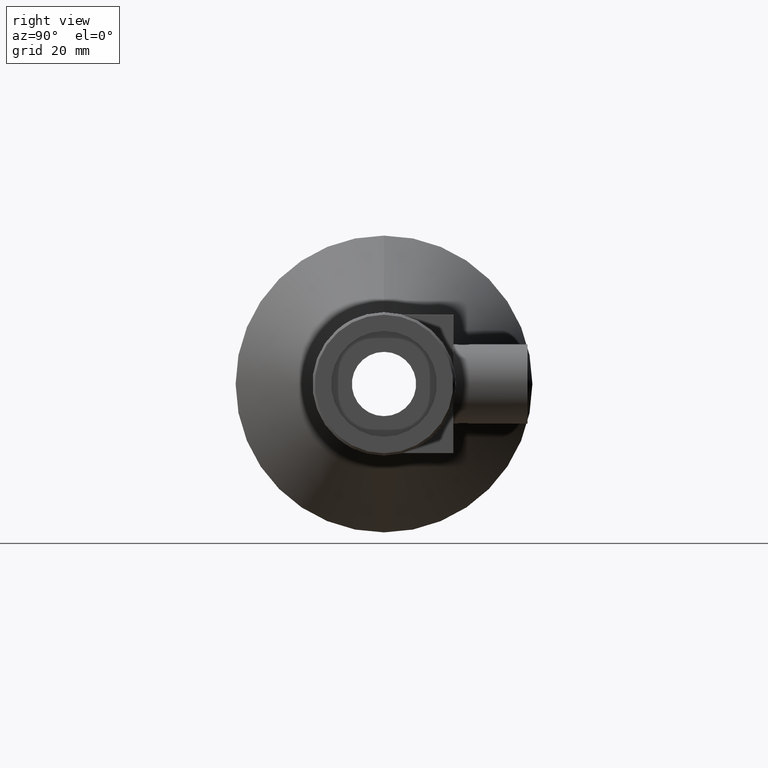
[diagram: clean part render]
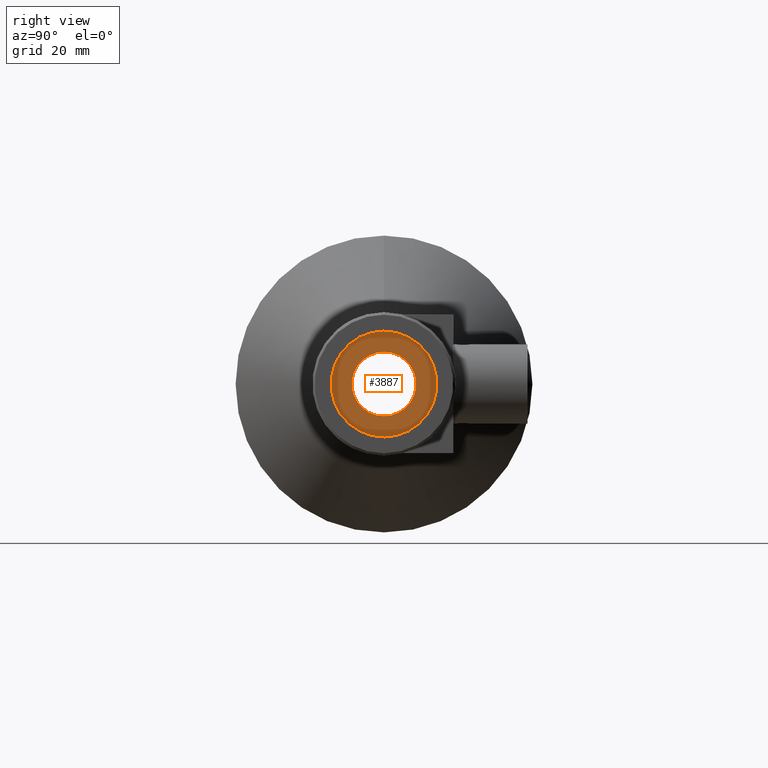
[diagram: same view with one face highlighted and labeled with its STEP entity id]
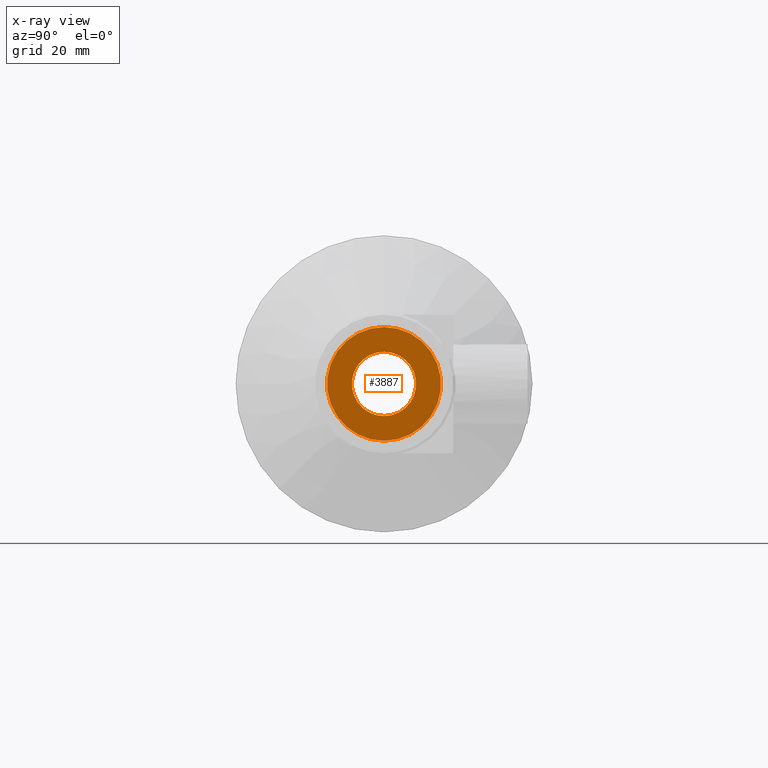
[diagram: x-ray of the same camera — body ghosted, the highlighted face saturated]
A machine part, right view. The second image highlights one B-rep face of the part: STEP entity #3887.
The next image is the same camera in x-ray: the body ghosted, the highlighted face saturated — about 0% of this face is hidden behind the body in this view.
In plain terms, the highlighted planar face has unit normal (-1, 0, -0).
Its self-contained STEP definition (entity closure, byte-faithful):
#7 = DIRECTION ( 'NONE',  ( -1.000000000000000000, -0.0000000000000000000, -0.0000000000000000000 ) ) ;
#48 = ORIENTED_EDGE ( 'NONE', *, *, #228, .T. ) ;
#53 = EDGE_LOOP ( 'NONE', ( #3794, #48 ) ) ;
#71 = DIRECTION ( 'NONE',  ( -1.000000000000000000, -0.0000000000000000000, -0.0000000000000000000 ) ) ;
#93 = FACE_BOUND ( 'NONE', #53, .T. ) ;
#204 = AXIS2_PLACEMENT_3D ( 'NONE', #2089, #7, #2400 ) ;
#228 = EDGE_CURVE ( 'NONE', #3220, #1177, #806, .T. ) ;
#709 = CIRCLE ( 'NONE', #969, 11.50000000000000000 ) ;
#743 = CARTESIAN_POINT ( 'NONE',  ( 115.5900000000000000, 11.50000000000000000, 0.0000000000000000000 ) ) ;
#806 = CIRCLE ( 'NONE', #2899, 6.500000000000000000 ) ;
#911 = DIRECTION ( 'NONE',  ( 0.0000000000000000000, 0.0000000000000000000, 1.000000000000000000 ) ) ;
#969 = AXIS2_PLACEMENT_3D ( 'NONE', #1879, #71, #2198 ) ;
#1054 = PLANE ( 'NONE',  #3822 ) ;
#1129 = VERTEX_POINT ( 'NONE', #2669 ) ;
#1177 = VERTEX_POINT ( 'NONE', #2553 ) ;
#1206 = ORIENTED_EDGE ( 'NONE', *, *, #2123, .F. ) ;
#1291 = AXIS2_PLACEMENT_3D ( 'NONE', #3209, #1371, #3512 ) ;
#1351 = DIRECTION ( 'NONE',  ( -0.0000000000000000000, 0.0000000000000000000, 1.000000000000000000 ) ) ;
#1371 = DIRECTION ( 'NONE',  ( -1.000000000000000000, -0.0000000000000000000, -0.0000000000000000000 ) ) ;
#1534 = CARTESIAN_POINT ( 'NONE',  ( 115.5900000000000000, 1.408343819019456200E-015, -11.50000000000000000 ) ) ;
#1619 = CIRCLE ( 'NONE', #204, 11.50000000000000000 ) ;
#1879 = CARTESIAN_POINT ( 'NONE',  ( 115.5900000000000000, 0.0000000000000000000, 0.0000000000000000000 ) ) ;
#1901 = CARTESIAN_POINT ( 'NONE',  ( 115.5900000000000000, 0.0000000000000000000, 0.0000000000000000000 ) ) ;
#1935 = EDGE_CURVE ( 'NONE', #1177, #3220, #2024, .T. ) ;
#2024 = CIRCLE ( 'NONE', #1291, 6.500000000000000000 ) ;
#2089 = CARTESIAN_POINT ( 'NONE',  ( 115.5900000000000000, 0.0000000000000000000, 0.0000000000000000000 ) ) ;
#2123 = EDGE_CURVE ( 'NONE', #1129, #3687, #1619, .T. ) ;
#2144 = CARTESIAN_POINT ( 'NONE',  ( 115.5900000000000000, 7.960204194457796500E-016, -6.500000000000000900 ) ) ;
#2198 = DIRECTION ( 'NONE',  ( 0.0000000000000000000, 0.0000000000000000000, 1.000000000000000000 ) ) ;
#2400 = DIRECTION ( 'NONE',  ( 0.0000000000000000000, 0.0000000000000000000, 1.000000000000000000 ) ) ;
#2545 = EDGE_LOOP ( 'NONE', ( #1206, #2959 ) ) ;
#2553 = CARTESIAN_POINT ( 'NONE',  ( 115.5900000000000000, 0.0000000000000000000, 6.500000000000000000 ) ) ;
#2669 = CARTESIAN_POINT ( 'NONE',  ( 115.5900000000000000, 0.0000000000000000000, 11.50000000000000000 ) ) ;
#2898 = DIRECTION ( 'NONE',  ( -1.000000000000000000, -0.0000000000000000000, -0.0000000000000000000 ) ) ;
#2899 = AXIS2_PLACEMENT_3D ( 'NONE', #1901, #2898, #911 ) ;
#2959 = ORIENTED_EDGE ( 'NONE', *, *, #3719, .F. ) ;
#3190 = DIRECTION ( 'NONE',  ( -1.000000000000000000, 0.0000000000000000000, -0.0000000000000000000 ) ) ;
#3209 = CARTESIAN_POINT ( 'NONE',  ( 115.5900000000000000, 0.0000000000000000000, 0.0000000000000000000 ) ) ;
#3220 = VERTEX_POINT ( 'NONE', #2144 ) ;
#3319 = FACE_OUTER_BOUND ( 'NONE', #2545, .T. ) ;
#3512 = DIRECTION ( 'NONE',  ( 0.0000000000000000000, 0.0000000000000000000, 1.000000000000000000 ) ) ;
#3687 = VERTEX_POINT ( 'NONE', #1534 ) ;
#3719 = EDGE_CURVE ( 'NONE', #3687, #1129, #709, .T. ) ;
#3794 = ORIENTED_EDGE ( 'NONE', *, *, #1935, .T. ) ;
#3822 = AXIS2_PLACEMENT_3D ( 'NONE', #743, #3190, #1351 ) ;
#3887 = ADVANCED_FACE ( 'NONE', ( #3319, #93 ), #1054, .F. ) ;